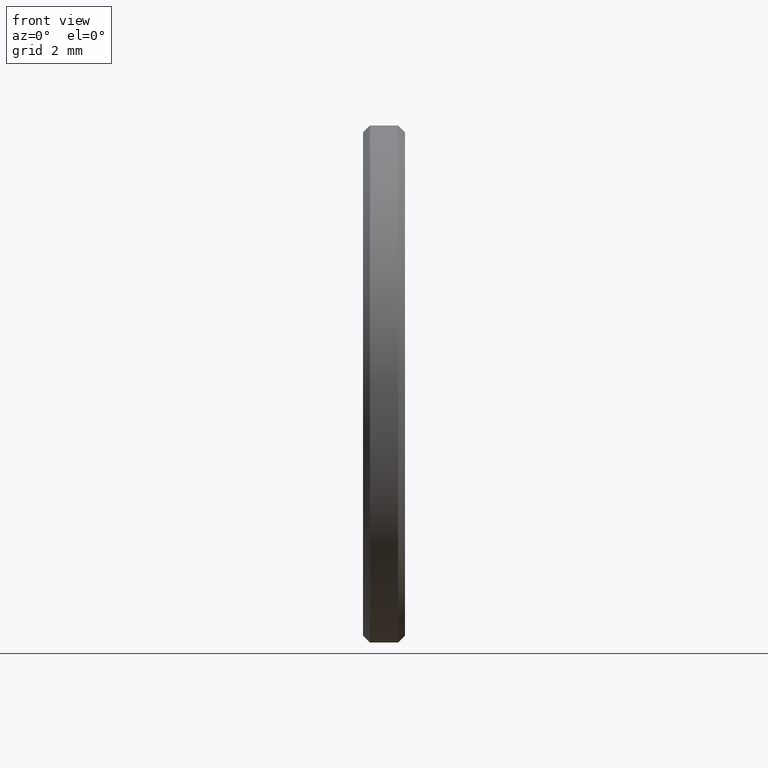
[diagram: clean part render]
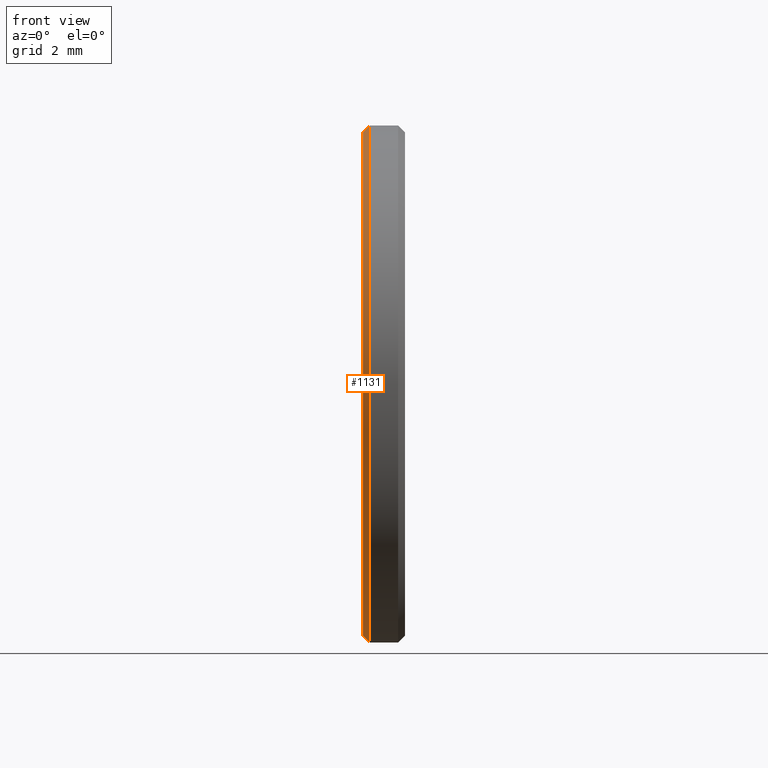
[diagram: same view with one face highlighted and labeled with its STEP entity id]
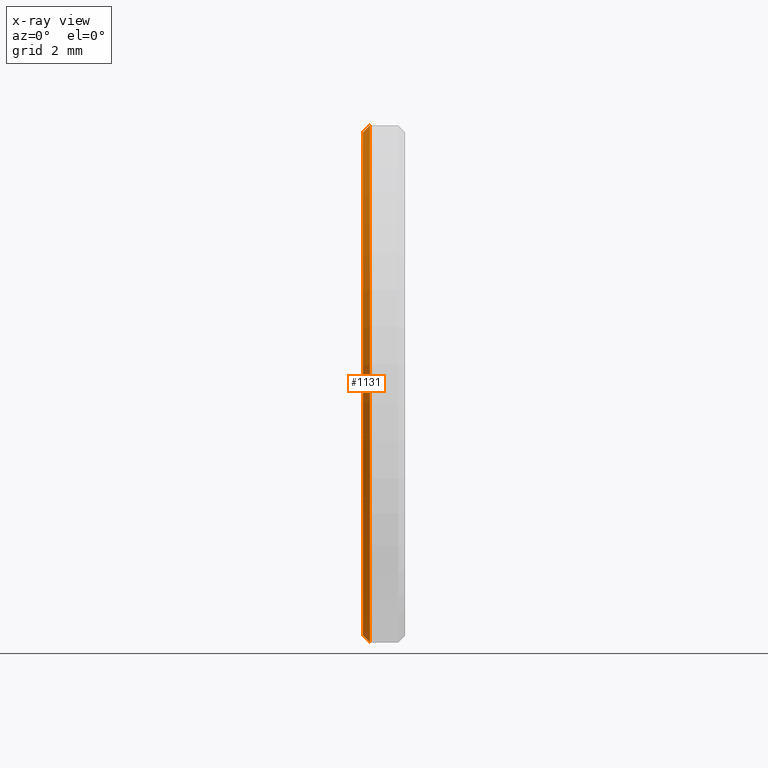
[diagram: x-ray of the same camera — body ghosted, the highlighted face saturated]
A machine part, front view. The second image highlights one B-rep face of the part: STEP entity #1131.
The next image is the same camera in x-ray: the body ghosted, the highlighted face saturated — about 0% of this face is hidden behind the body in this view.
In plain terms, the highlighted conical surface has half-angle 45 deg.
Its self-contained STEP definition (entity closure, byte-faithful):
#41 = AXIS2_PLACEMENT_3D ( 'NONE', #536, #1040, #766 ) ;
#78 = CARTESIAN_POINT ( 'NONE',  ( 0.01000000000000003000, 4.592425496802575500E-017, 0.3750000000000000600 ) ) ;
#113 = VERTEX_POINT ( 'NONE', #1016 ) ;
#135 = EDGE_CURVE ( 'NONE', #113, #153, #670, .T. ) ;
#153 = VERTEX_POINT ( 'NONE', #1103 ) ;
#233 = CONICAL_SURFACE ( 'NONE', #964, 0.3750000000000000600, 0.7853981633974517200 ) ;
#238 = CARTESIAN_POINT ( 'NONE',  ( 0.01000000000000003000, 0.0000000000000000000, 0.0000000000000000000 ) ) ;
#259 = CARTESIAN_POINT ( 'NONE',  ( 0.01000000000000003000, 0.0000000000000000000, 0.0000000000000000000 ) ) ;
#263 = EDGE_CURVE ( 'NONE', #113, #1143, #710, .T. ) ;
#367 = VECTOR ( 'NONE', #1055, 39.37007874015748900 ) ;
#382 = ORIENTED_EDGE ( 'NONE', *, *, #135, .T. ) ;
#409 = LINE ( 'NONE', #439, #367 ) ;
#433 = DIRECTION ( 'NONE',  ( 0.0000000000000000000, 0.0000000000000000000, 1.000000000000000000 ) ) ;
#439 = CARTESIAN_POINT ( 'NONE',  ( 0.01000000000000003000, 4.592425496802575500E-017, 0.3750000000000000600 ) ) ;
#448 = CARTESIAN_POINT ( 'NONE',  ( 0.0000000000000000000, 4.531193156845206700E-017, 0.3649999999999999400 ) ) ;
#470 = ORIENTED_EDGE ( 'NONE', *, *, #263, .F. ) ;
#481 = FACE_OUTER_BOUND ( 'NONE', #752, .T. ) ;
#529 = DIRECTION ( 'NONE',  ( 1.000000000000000000, -0.0000000000000000000, -0.0000000000000000000 ) ) ;
#535 = DIRECTION ( 'NONE',  ( 0.0000000000000000000, 0.0000000000000000000, -1.000000000000000000 ) ) ;
#536 = CARTESIAN_POINT ( 'NONE',  ( 0.0000000000000000000, 0.0000000000000000000, 0.0000000000000000000 ) ) ;
#577 = VERTEX_POINT ( 'NONE', #78 ) ;
#582 = CARTESIAN_POINT ( 'NONE',  ( 0.01000000000000003000, 0.0000000000000000000, -0.3750000000000000600 ) ) ;
#608 = EDGE_CURVE ( 'NONE', #1143, #577, #409, .T. ) ;
#670 = LINE ( 'NONE', #582, #811 ) ;
#710 = CIRCLE ( 'NONE', #41, 0.3649999999999999400 ) ;
#729 = AXIS2_PLACEMENT_3D ( 'NONE', #238, #1033, #433 ) ;
#752 = EDGE_LOOP ( 'NONE', ( #990, #470, #382, #830 ) ) ;
#766 = DIRECTION ( 'NONE',  ( 0.0000000000000000000, 0.0000000000000000000, 1.000000000000000000 ) ) ;
#811 = VECTOR ( 'NONE', #1106, 39.37007874015748900 ) ;
#830 = ORIENTED_EDGE ( 'NONE', *, *, #950, .F. ) ;
#869 = CIRCLE ( 'NONE', #729, 0.3750000000000000600 ) ;
#950 = EDGE_CURVE ( 'NONE', #577, #153, #869, .T. ) ;
#964 = AXIS2_PLACEMENT_3D ( 'NONE', #259, #529, #535 ) ;
#990 = ORIENTED_EDGE ( 'NONE', *, *, #608, .F. ) ;
#1016 = CARTESIAN_POINT ( 'NONE',  ( 0.0000000000000000000, 0.0000000000000000000, -0.3649999999999999400 ) ) ;
#1033 = DIRECTION ( 'NONE',  ( 1.000000000000000000, -0.0000000000000000000, -0.0000000000000000000 ) ) ;
#1040 = DIRECTION ( 'NONE',  ( -1.000000000000000000, 0.0000000000000000000, 0.0000000000000000000 ) ) ;
#1055 = DIRECTION ( 'NONE',  ( 0.7071067811865450200, 8.659560562354962400E-017, 0.7071067811865499000 ) ) ;
#1103 = CARTESIAN_POINT ( 'NONE',  ( 0.01000000000000003000, 0.0000000000000000000, -0.3750000000000000600 ) ) ;
#1106 = DIRECTION ( 'NONE',  ( 0.7071067811865450200, 0.0000000000000000000, -0.7071067811865499000 ) ) ;
#1131 = ADVANCED_FACE ( 'NONE', ( #481 ), #233, .T. ) ;
#1143 = VERTEX_POINT ( 'NONE', #448 ) ;